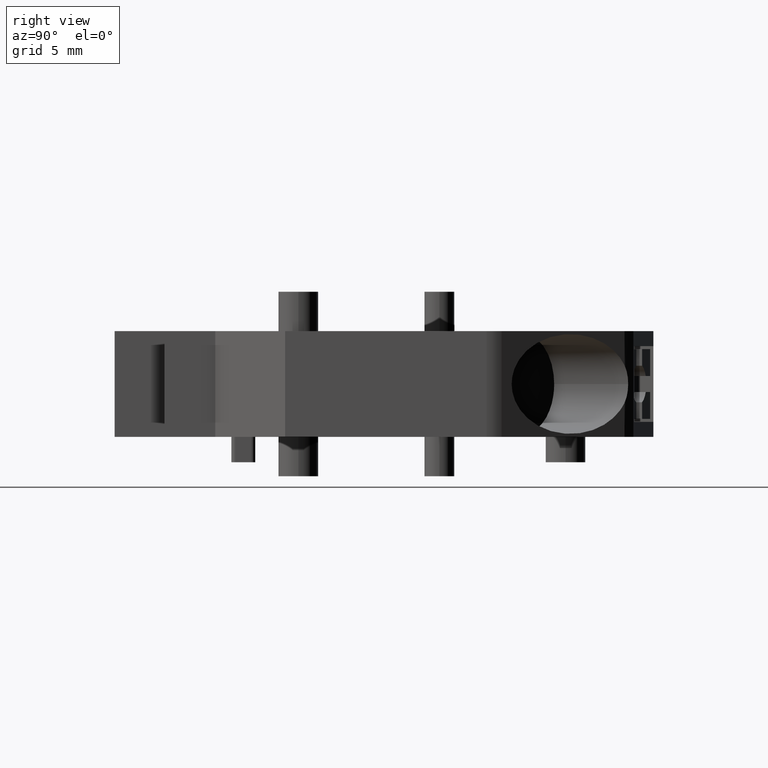
[diagram: clean part render]
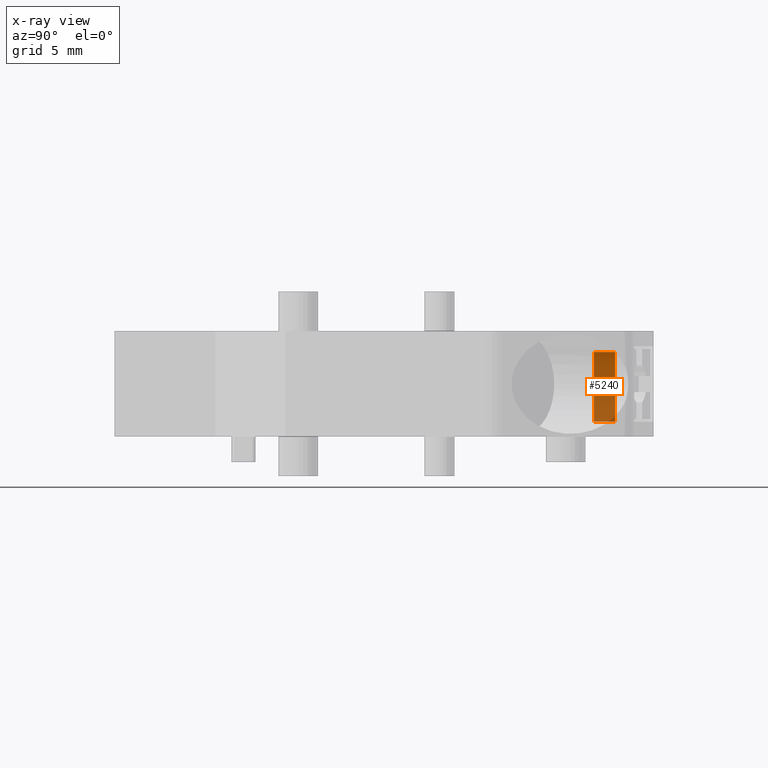
[diagram: x-ray — body ghosted, one internal face saturated and labeled with its STEP entity id]
A machine part, right view, then the same camera in x-ray: the body is ghosted and one INTERNAL B-rep face — a face not visible from any outside direction — is saturated and labeled: STEP entity #5240.
In plain terms, the highlighted planar face has unit normal (0.9511, 0.309, -0).
Its self-contained STEP definition (entity closure, byte-faithful):
#243 = EDGE_LOOP ( 'NONE', ( #1944, #3263, #3266, #3269 ) ) ;
#1219 = EDGE_CURVE ( 'NONE', #3338, #3319, #2761, .T. ) ;
#1236 = EDGE_CURVE ( 'NONE', #3375, #3338, #2803, .T. ) ;
#1242 = EDGE_CURVE ( 'NONE', #3398, #3375, #2807, .T. ) ;
#1298 = EDGE_CURVE ( 'NONE', #3319, #3398, #4349, .T. ) ;
#1659 = VECTOR ( 'NONE', #2795, 1000.000000000000000 ) ;
#1696 = VECTOR ( 'NONE', #2824, 1000.000000000000100 ) ;
#1700 = VECTOR ( 'NONE', #2774, 1000.000000000000000 ) ;
#1880 = AXIS2_PLACEMENT_3D ( 'NONE', #4018, #4056, #4007 ) ;
#1944 = ORIENTED_EDGE ( 'NONE', *, *, #1242, .F. ) ;
#2055 = CARTESIAN_POINT ( 'NONE',  ( 284.6918912753548100, 455.0735823708585600, -26.37999999999999900 ) ) ;
#2129 = CARTESIAN_POINT ( 'NONE',  ( 285.0342846478722500, 454.0198564226294000, -29.87999999999999900 ) ) ;
#2132 = CARTESIAN_POINT ( 'NONE',  ( 284.6918912753544100, 455.0735823708581100, -29.87999999999999900 ) ) ;
#2160 = CARTESIAN_POINT ( 'NONE',  ( 285.0342846478722500, 454.0198564226292900, -26.37999999999999900 ) ) ;
#2758 = CARTESIAN_POINT ( 'NONE',  ( 284.6918912753548100, 455.0735823708585600, -26.18000000000000300 ) ) ;
#2761 = LINE ( 'NONE', #2758, #1700 ) ;
#2774 = DIRECTION ( 'NONE',  ( 0.0000000000000000000, 0.0000000000000000000, 1.000000000000000000 ) ) ;
#2780 = CARTESIAN_POINT ( 'NONE',  ( 284.6918912753549800, 455.0735823708579900, -29.87999999999999900 ) ) ;
#2792 = CARTESIAN_POINT ( 'NONE',  ( 285.0342846478722500, 454.0198564226293500, -19.11239442878817800 ) ) ;
#2795 = DIRECTION ( 'NONE',  ( -0.0000000000000000000, -0.0000000000000000000, -1.000000000000000000 ) ) ;
#2803 = LINE ( 'NONE', #2780, #1696 ) ;
#2807 = LINE ( 'NONE', #2792, #1659 ) ;
#2824 = DIRECTION ( 'NONE',  ( -0.3090309196485854200, 0.9510519915867636800, 0.0000000000000000000 ) ) ;
#3263 = ORIENTED_EDGE ( 'NONE', *, *, #1298, .F. ) ;
#3266 = ORIENTED_EDGE ( 'NONE', *, *, #1219, .F. ) ;
#3269 = ORIENTED_EDGE ( 'NONE', *, *, #1236, .F. ) ;
#3319 = VERTEX_POINT ( 'NONE', #2055 ) ;
#3338 = VERTEX_POINT ( 'NONE', #2132 ) ;
#3375 = VERTEX_POINT ( 'NONE', #2129 ) ;
#3398 = VERTEX_POINT ( 'NONE', #2160 ) ;
#3485 = VECTOR ( 'NONE', #4336, 1000.000000000000100 ) ;
#4007 = DIRECTION ( 'NONE',  ( -0.3090309196485854200, 0.9510519915867636800, 0.0000000000000000000 ) ) ;
#4008 = FACE_OUTER_BOUND ( 'NONE', #243, .T. ) ;
#4018 = CARTESIAN_POINT ( 'NONE',  ( 284.6918912753549800, 455.0735823708579900, -26.18000000000000300 ) ) ;
#4025 = PLANE ( 'NONE',  #1880 ) ;
#4056 = DIRECTION ( 'NONE',  ( 0.9510519915867636800, 0.3090309196485854200, -0.0000000000000000000 ) ) ;
#4336 = DIRECTION ( 'NONE',  ( 0.3090309196485854200, -0.9510519915867636800, -0.0000000000000000000 ) ) ;
#4349 = LINE ( 'NONE', #4358, #3485 ) ;
#4358 = CARTESIAN_POINT ( 'NONE',  ( 284.6918912753549800, 455.0735823708579900, -26.37999999999999900 ) ) ;
#5240 = ADVANCED_FACE ( 'NONE', ( #4008 ), #4025, .F. ) ;